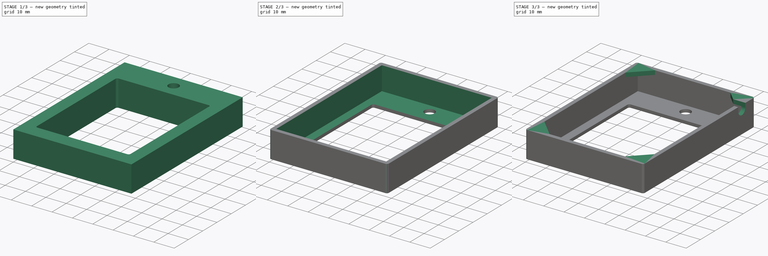
[diagram: build sequence overview — one tinted view per stage of 3, left to right]
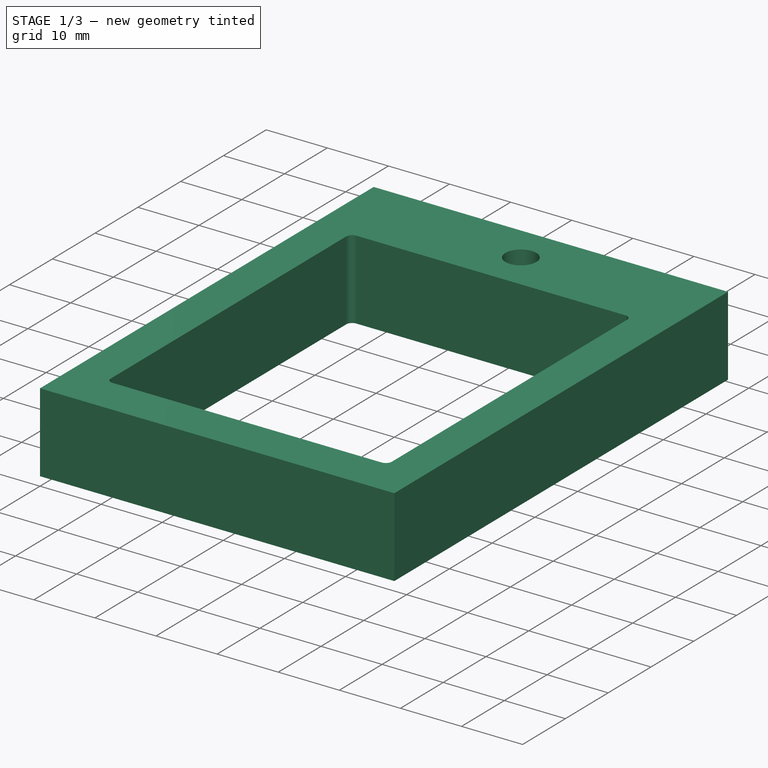
[diagram: stage 1 of 3 — iso view after this stage's code; geometry added in this stage tinted green]
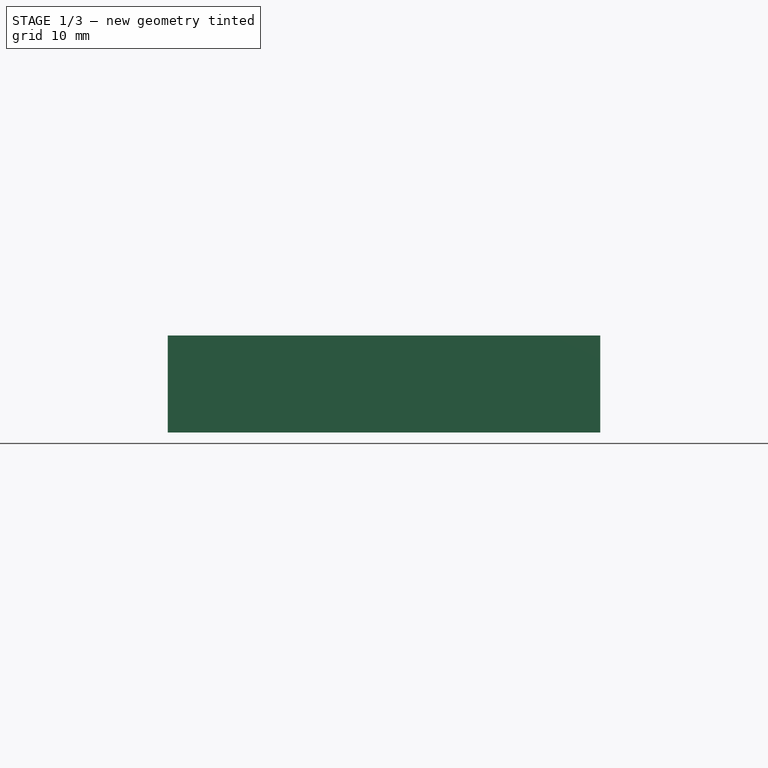
[diagram: stage 1 of 3 — front view after this stage's code; geometry added in this stage tinted green]
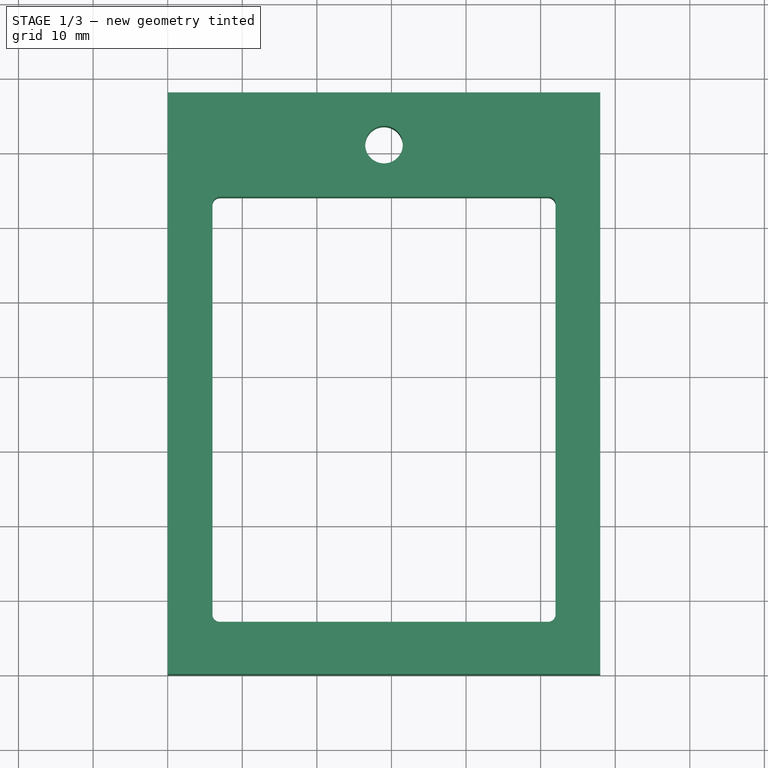
[diagram: stage 1 of 3 — top view after this stage's code; geometry added in this stage tinted green]
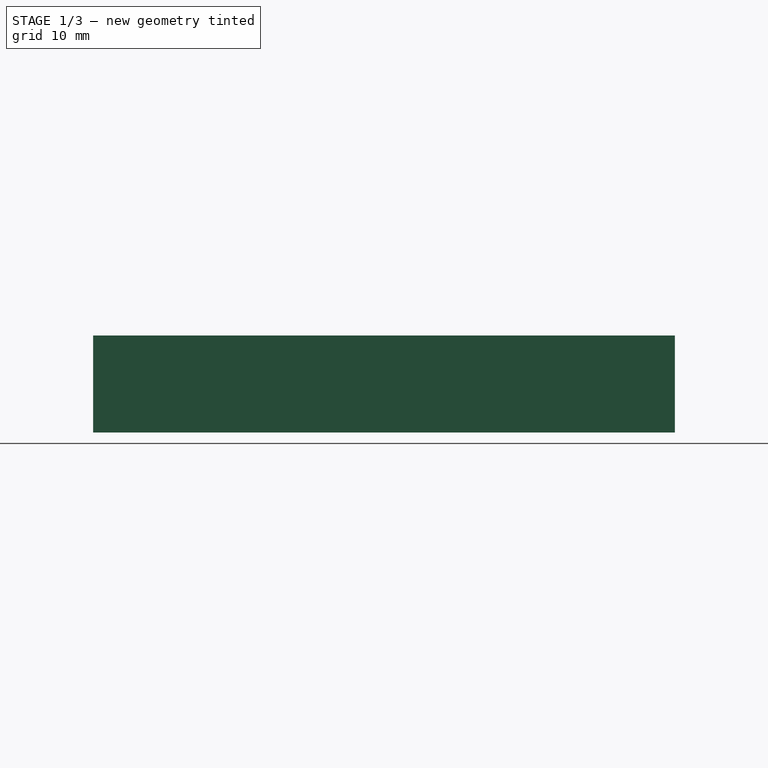
[diagram: stage 1 of 3 — right view after this stage's code; geometry added in this stage tinted green]
FCSTD DOCUMENT  (FreeCAD 0.18R16146 (Git))
Label: keypad
License: All rights reserved
LicenseURL: http://en.wikipedia.org/wiki/All_rights_reserved
objects: Sketcher::SketchObject×3, PartDesign::Pad×2, PartDesign::Fillet×2, PartDesign::Pocket×2, PartDesign::Body×1
note: 14 computed .brp shape members not serialized (recipe doc carries the construction recipe); baked Part::Feature solids carry a one-line shape summary decoded from their .brp

FEATURE [Sketcher::SketchObject] Sketch
  MapMode = 5
  Support = -> [XY_Plane]
  sketch-geometry (15):
    g0: LineSegment StartX=0 StartY=78 StartZ=0 EndX=58 EndY=78 EndZ=0
    g1: LineSegment StartX=58 StartY=78 StartZ=0 EndX=58 EndY=0 EndZ=0
    g2: LineSegment StartX=58 StartY=0 StartZ=0 EndX=0 EndY=0 EndZ=0
    g3: LineSegment StartX=0 StartY=0 StartZ=0 EndX=0 EndY=78 EndZ=0
    g4: LineSegment StartX=6 StartY=64 StartZ=0 EndX=6 EndY=7 EndZ=0
    g5: LineSegment StartX=6 StartY=7 StartZ=0 EndX=52 EndY=7 EndZ=0
    g6: LineSegment StartX=52 StartY=7 StartZ=0 EndX=52 EndY=64 EndZ=0
    g7: LineSegment StartX=52 StartY=64 StartZ=0 EndX=6 EndY=64 EndZ=0
    g8: LineSegment [constr] StartX=29 StartY=78 StartZ=0 EndX=29 EndY=0 EndZ=0
    g9: LineSegment [constr] StartX=29 StartY=78 StartZ=0 EndX=0 EndY=78 EndZ=0
    g10: LineSegment [constr] StartX=0 StartY=71 StartZ=0 EndX=29 EndY=71 EndZ=0
    g11: LineSegment [constr] StartX=29 StartY=71 StartZ=0 EndX=58 EndY=71 EndZ=0
    g12: LineSegment [constr] StartX=6 StartY=20 StartZ=0 EndX=29 EndY=20 EndZ=0
    g13: LineSegment [constr] StartX=29 StartY=20 StartZ=0 EndX=52 EndY=20 EndZ=0
    g14: Circle CenterX=29 CenterY=71 CenterZ=0 NormalX=0 NormalY=0 NormalZ=1 AngleXU=0 Radius=2.525
  constraints (45):
    c: Coincident(g0,g1)
    c: Coincident(g1,g2)
    c: Coincident(g2,g3)
    c: Coincident(g3,g0)
    c: Horizontal(g0)
    c: Horizontal(g2)
    c: Vertical(g1)
    c: Vertical(g3)
    c: Coincident(g-1,g2)
    c: Distance(g0) = 58
    c: Distance(g1) = 78
    c: Vertical(g4)
    c: Coincident(g4,g5)
    c: Horizontal(g5)
    c: Coincident(g5,g6)
    c: Coincident(g6,g7)
    c: Coincident(g7,g4)
    c: Parallel(g4,g6)
    c: Parallel(g7,g5)
    c: Distance(g7) = 46
    c: Distance(g6) = 57
    c: PointOnObject(g8,g0)
    c: PointOnObject(g8,g2)
    c: Vertical(g8)
    c: Coincident(g9,g8)
    c: Coincident(g9,g0)
    c: PointOnObject(g10,g3)
    c: Horizontal(g10)
    c: Coincident(g11,g10)
    c: PointOnObject(g11,g1)
    c: Horizontal(g11)
    c: Equal(g11,g10)
    c: PointOnObject(g10,g8)
    c: DistanceY(g1,g5) = 7
    c: PointOnObject(g12,g4)
    c: PointOnObject(g12,g8)
    c: Horizontal(g12)
    c: PointOnObject(g13,g6)
    c: Horizontal(g13)
    c: Equal(g12,g13)
    c: Coincident(g12,g13)
    c: Distance(g10,g8) = 7
    c: Distance(g12,g8) = 20
    c: Coincident(g14,g10)
    c: Diameter(g14) = 5.05
FEATURE [PartDesign::Pad] Pad
  Length = 13
  Length2 = 100
  Profile = -> Sketch
  Refine = true
  Type = 0
FEATURE [Sketcher::SketchObject] Sketch001
  ExternalGeometry = -> [Pad]
  MapMode = 5
  Placement = pos=(0,0,13) rot=(0,0,1;0rad)
  Support = -> [Pad]
  sketch-geometry (12):
    g0: LineSegment StartX=2 StartY=76 StartZ=0 EndX=56 EndY=76 EndZ=0
    g1: LineSegment StartX=56 StartY=76 StartZ=0 EndX=56 EndY=2 EndZ=0
    g2: LineSegment StartX=56 StartY=2 StartZ=0 EndX=2 EndY=2 EndZ=0
    g3: LineSegment StartX=2 StartY=2 StartZ=0 EndX=2 EndY=76 EndZ=0
    g4: LineSegment [constr] StartX=0 StartY=39 StartZ=0 EndX=29 EndY=39 EndZ=0
    g5: LineSegment [constr] StartX=29 StartY=39 StartZ=0 EndX=58 EndY=39 EndZ=0
    g6: LineSegment [constr] StartX=29 StartY=78 StartZ=0 EndX=29 EndY=39 EndZ=0
    g7: LineSegment [constr] StartX=29 StartY=39 StartZ=0 EndX=29 EndY=0 EndZ=0
    g8: LineSegment [constr] StartX=2 StartY=76 StartZ=0 EndX=0 EndY=78 EndZ=0
    g9: LineSegment [constr] StartX=56 StartY=76 StartZ=0 EndX=58 EndY=78 EndZ=0
    g10: LineSegment [constr] StartX=56 StartY=2 StartZ=0 EndX=58 EndY=2e-16 EndZ=0
    g11: LineSegment [constr] StartX=0 StartY=0 StartZ=0 EndX=2 EndY=2 EndZ=0
  constraints (33):
    c: Coincident(g0,g1)
    c: Coincident(g1,g2)
    c: Coincident(g2,g3)
    c: Coincident(g3,g0)
    c: Horizontal(g0)
    c: Horizontal(g2)
    c: Vertical(g1)
    c: Horizontal(g4)
    c: Coincident(g4,g5)
    c: PointOnObject(g5,g-4)
    c: Horizontal(g5)
    c: Coincident(g6,g4)
    c: Coincident(g6,g7)
    c: PointOnObject(g7,g-1)
    c: Vertical(g7)
    c: Equal(g4,g5)
    c: Equal(g6,g7)
    c: Vertical(g6)
    c: PointOnObject(g6,g-3)
    c: PointOnObject(g4,g-2)
    c: Coincident(g8,g-3)
    c: Coincident(g9,g0)
    c: Coincident(g9,g-4)
    c: Coincident(g10,g1)
    c: Coincident(g11,g-1)
    c: Coincident(g11,g2)
    c: Equal(g8,g9)
    c: Equal(g9,g10)
    c: Equal(g10,g11)
    c: Coincident(g-4,g10)
    c: Coincident(g8,g0)
    c: DistanceX(g-1,g0) = 2
    c: DistanceY(g0,g9) = 2
FEATURE [PartDesign::Fillet] Fillet
  Base = -> Pad [Edge13,Edge14,Edge17,Edge20]
  BaseFeature = -> Pad
  Radius = 1
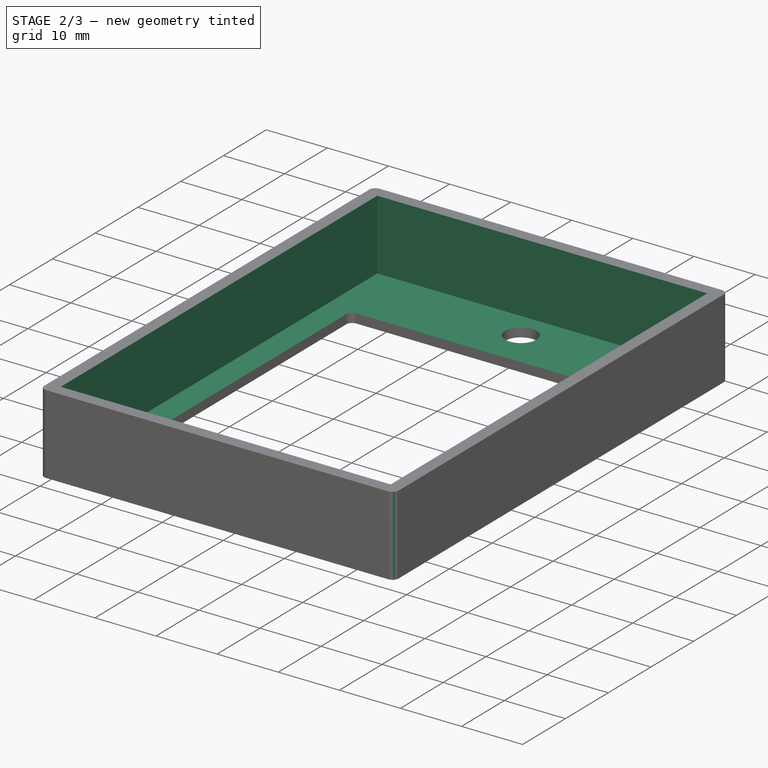
[diagram: stage 2 of 3 — iso view after this stage's code; geometry added in this stage tinted green]
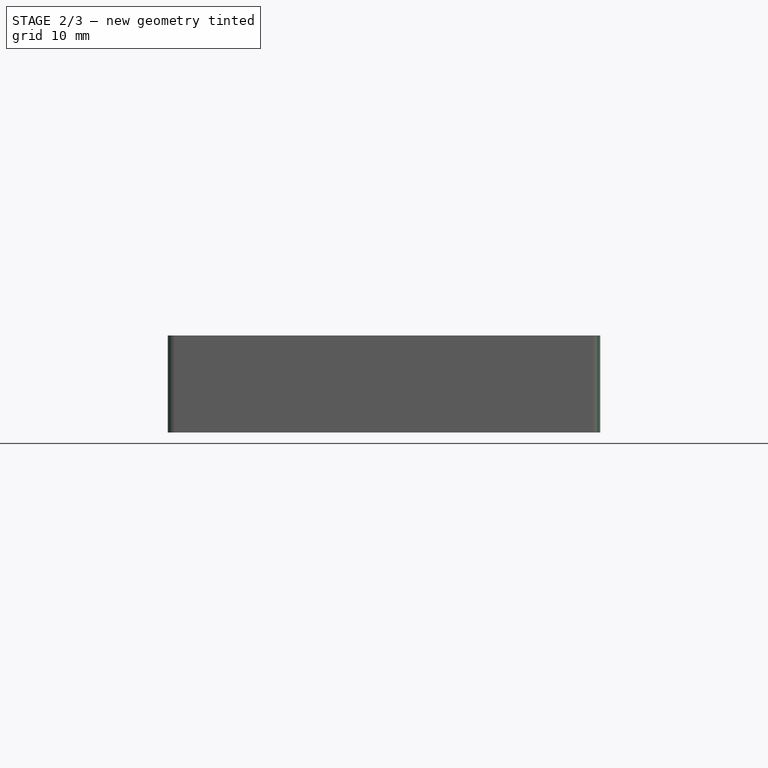
[diagram: stage 2 of 3 — front view after this stage's code; geometry added in this stage tinted green]
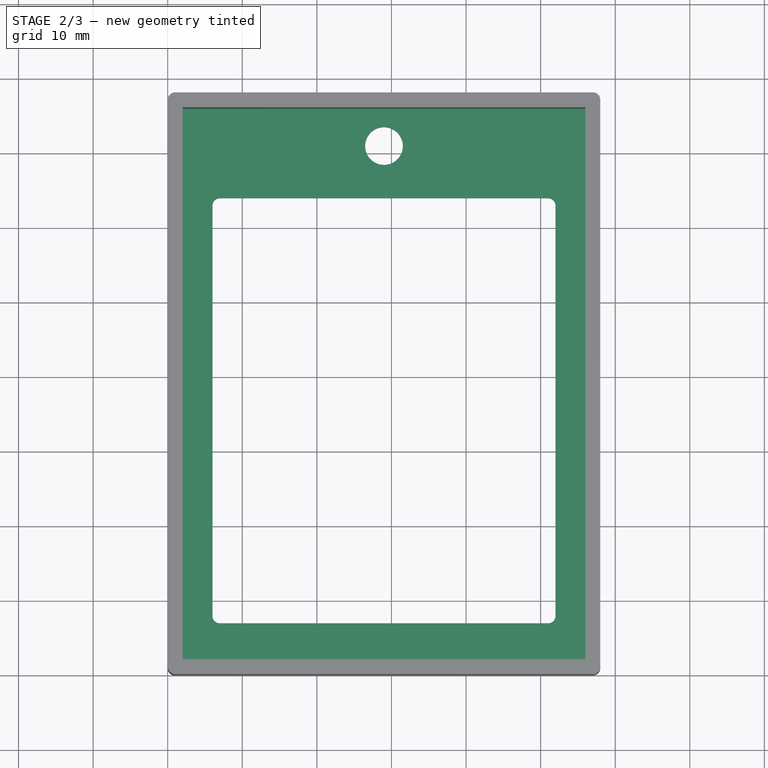
[diagram: stage 2 of 3 — top view after this stage's code; geometry added in this stage tinted green]
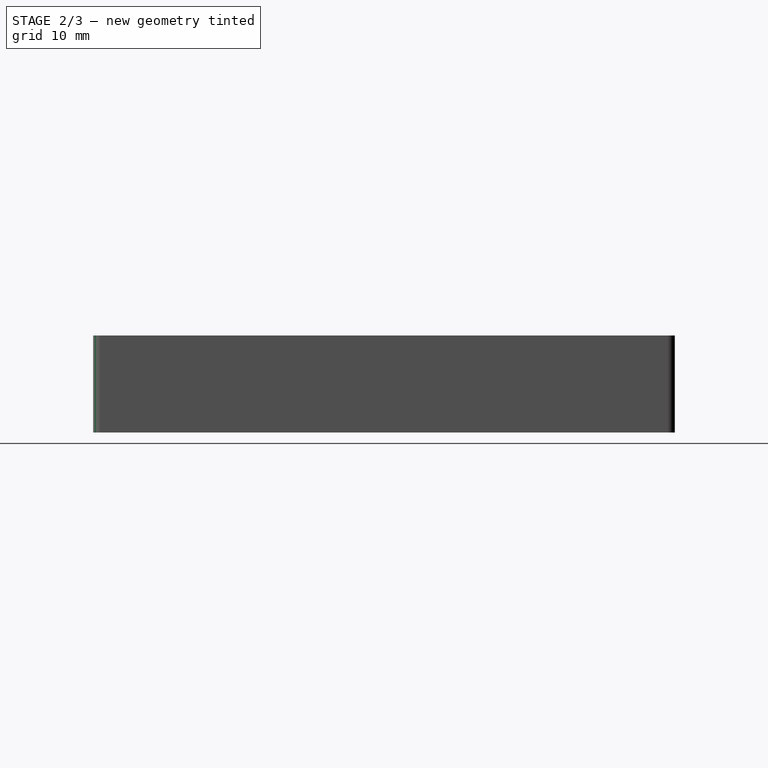
[diagram: stage 2 of 3 — right view after this stage's code; geometry added in this stage tinted green]
FEATURE [PartDesign::Pocket] Pocket
  BaseFeature = -> Fillet
  Length = 11.5
  Length2 = 100
  Profile = -> Sketch001
  Refine = true
  Type = 0
FEATURE [PartDesign::Fillet] Fillet001
  Base = -> Pocket [Edge38,Edge36,Edge35,Edge40]
  BaseFeature = -> Pocket
  Radius = 1
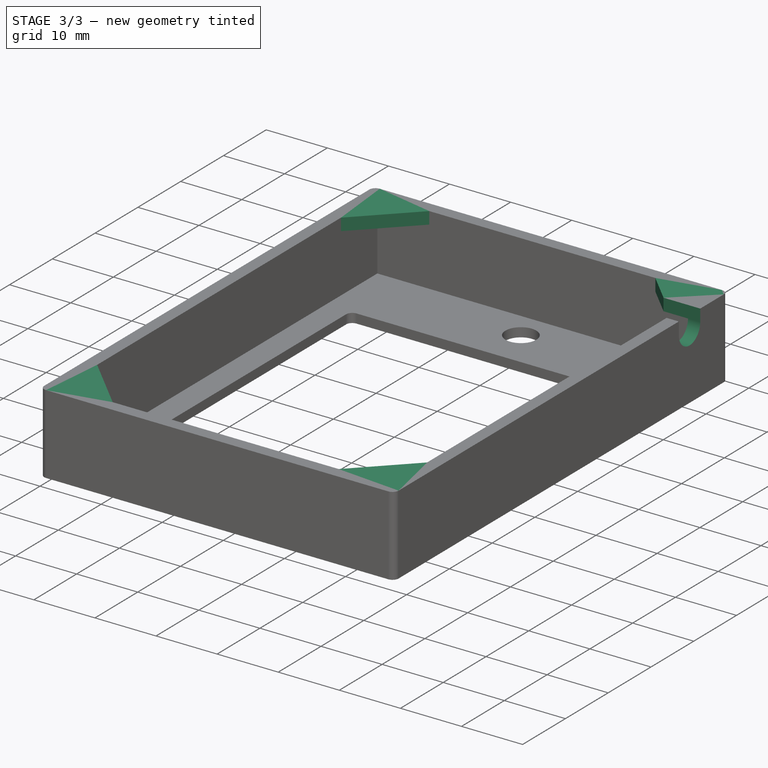
[diagram: stage 3 of 3 — iso view after this stage's code; geometry added in this stage tinted green]
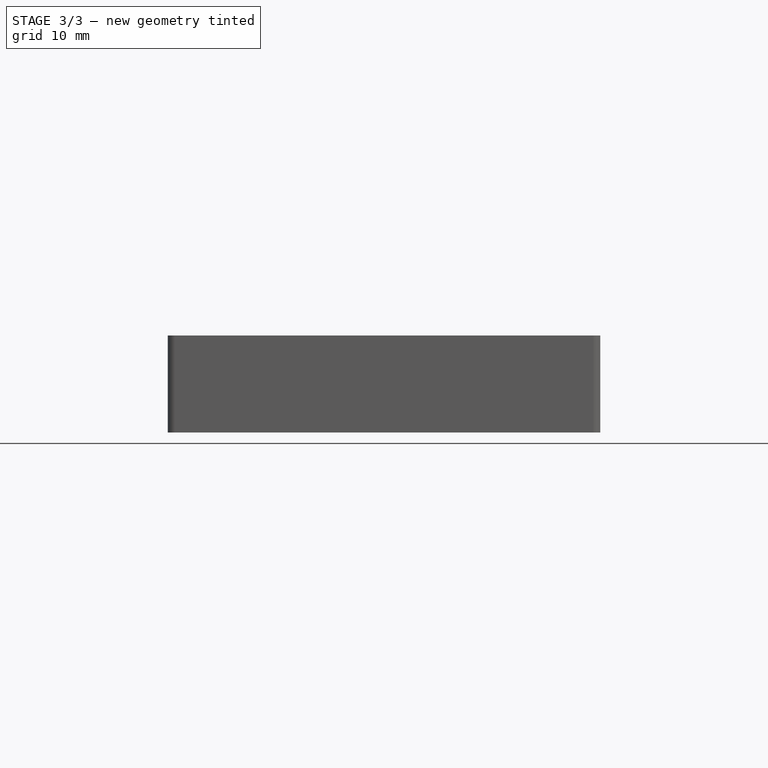
[diagram: stage 3 of 3 — front view after this stage's code; geometry added in this stage tinted green]
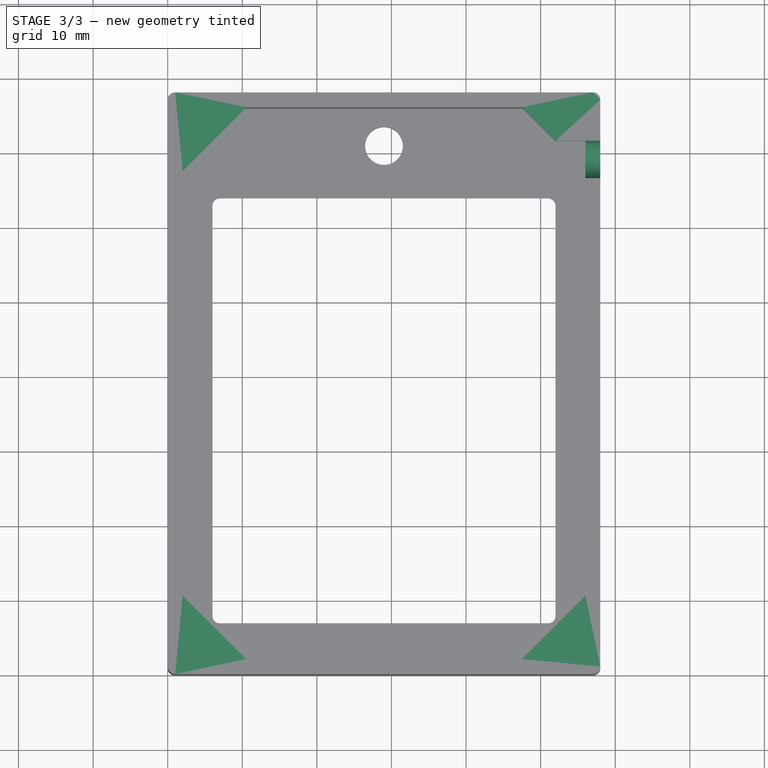
[diagram: stage 3 of 3 — top view after this stage's code; geometry added in this stage tinted green]
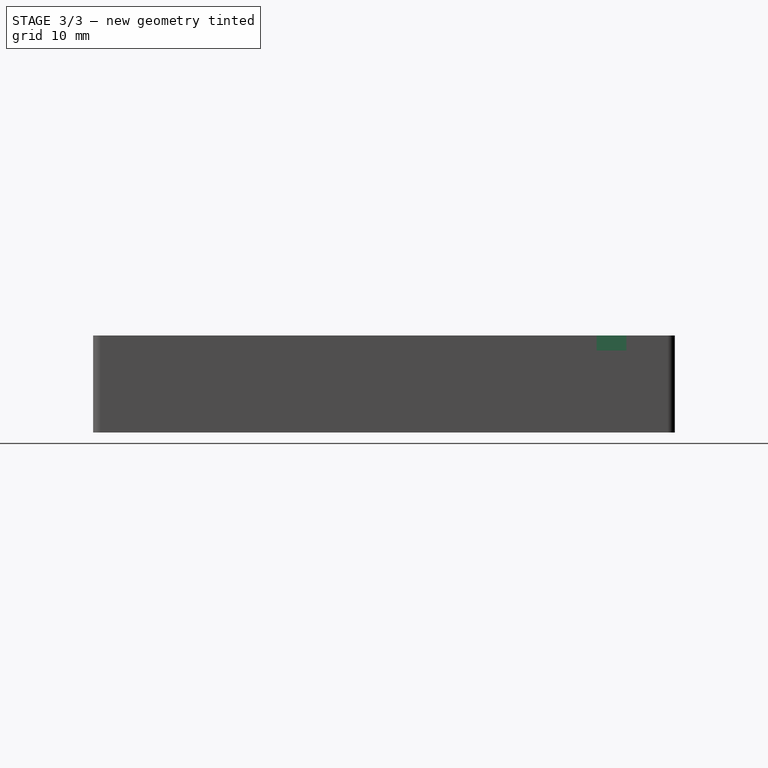
[diagram: stage 3 of 3 — right view after this stage's code; geometry added in this stage tinted green]
FEATURE [Sketcher::SketchObject] Sketch002
  ExternalGeometry = -> [Fillet001]
  MapMode = 5
  Placement = pos=(0,0,13) rot=(0,0,1;0rad)
  Support = -> [Fillet001]
  sketch-geometry (12):
    g0: LineSegment StartX=2 StartY=76 StartZ=0 EndX=10.5 EndY=76 EndZ=0
    g1: LineSegment StartX=10.5 StartY=76 StartZ=0 EndX=2 EndY=67.5 EndZ=0
    g2: LineSegment StartX=2 StartY=67.5 StartZ=0 EndX=2 EndY=76 EndZ=0
    g3: LineSegment StartX=47.5 StartY=76 StartZ=0 EndX=56 EndY=76 EndZ=0
    g4: LineSegment StartX=56 StartY=76 StartZ=0 EndX=56 EndY=67.5 EndZ=0
    g5: LineSegment StartX=56 StartY=67.5 StartZ=0 EndX=47.5 EndY=76 EndZ=0
    g6: LineSegment StartX=2 StartY=10.5 StartZ=0 EndX=2 EndY=2 EndZ=0
    g7: LineSegment StartX=2 StartY=2 StartZ=0 EndX=10.5 EndY=2 EndZ=0
    g8: LineSegment StartX=10.5 StartY=2 StartZ=0 EndX=2 EndY=10.5 EndZ=0
    g9: LineSegment StartX=47.5 StartY=2 StartZ=0 EndX=56 EndY=10.5 EndZ=0
    g10: LineSegment StartX=56 StartY=10.5 StartZ=0 EndX=56 EndY=2 EndZ=0
    g11: LineSegment StartX=56 StartY=2 StartZ=0 EndX=47.5 EndY=2 EndZ=0
  constraints (32):
    c: Coincident(g-4,g0)
    c: PointOnObject(g0,g-3)
    c: Coincident(g0,g1)
    c: PointOnObject(g1,g-4)
    c: Coincident(g1,g2)
    c: Coincident(g2,g0)
    c: PointOnObject(g3,g-3)
    c: Coincident(g3,g-3)
    c: Coincident(g3,g4)
    c: Vertical(g4)
    c: Coincident(g4,g5)
    c: Coincident(g5,g3)
    c: PointOnObject(g6,g-4)
    c: Coincident(g6,g-5)
    c: Coincident(g6,g7)
    c: PointOnObject(g7,g-5)
    c: Coincident(g7,g8)
    c: Coincident(g8,g6)
    c: Coincident(g9,g10)
    c: Coincident(g10,g-5)
    c: Vertical(g10)
    c: Coincident(g10,g11)
    c: Coincident(g11,g9)
    c: PointOnObject(g9,g-5)
    c: Equal(g0,g2)
    c: Equal(g2,g6)
    c: Equal(g6,g7)
    c: Equal(g7,g11)
    c: Equal(g11,g10)
    c: Equal(g10,g4)
    c: Equal(g4,g3)
    c: Distance(g10,g9) = 8.5
FEATURE [PartDesign::Pad] Pad001
  BaseFeature = -> Fillet001
  Length = 2
  Length2 = 100
  Profile = -> Sketch002
  Refine = true
  Reversed = true
  Type = 0
FEATURE [PartDesign::Pocket] Pocket002
  BaseFeature = -> Pad001
  Length = 9
  Length2 = 100
  Refine = true
  Type = 0
FEATURE [PartDesign::Body] Body
  Group = -> [Sketch,Pad,Sketch001,Fillet,Pocket,Fillet001,Sketch002,Pad001,Pocket002]
  Origin = -> Origin
  Tip = -> Pocket002
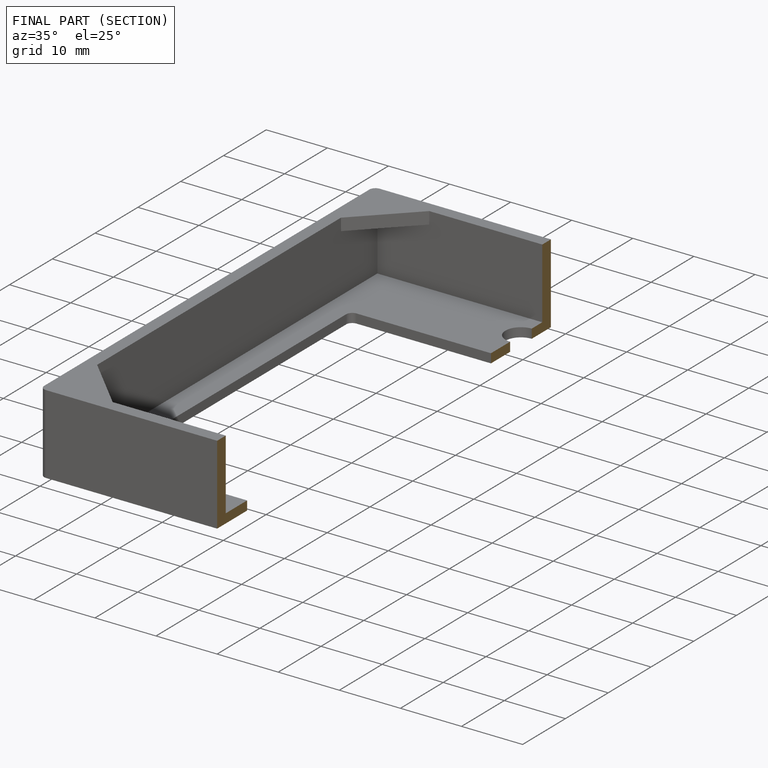
[diagram: finished part — half-section view (interior)]
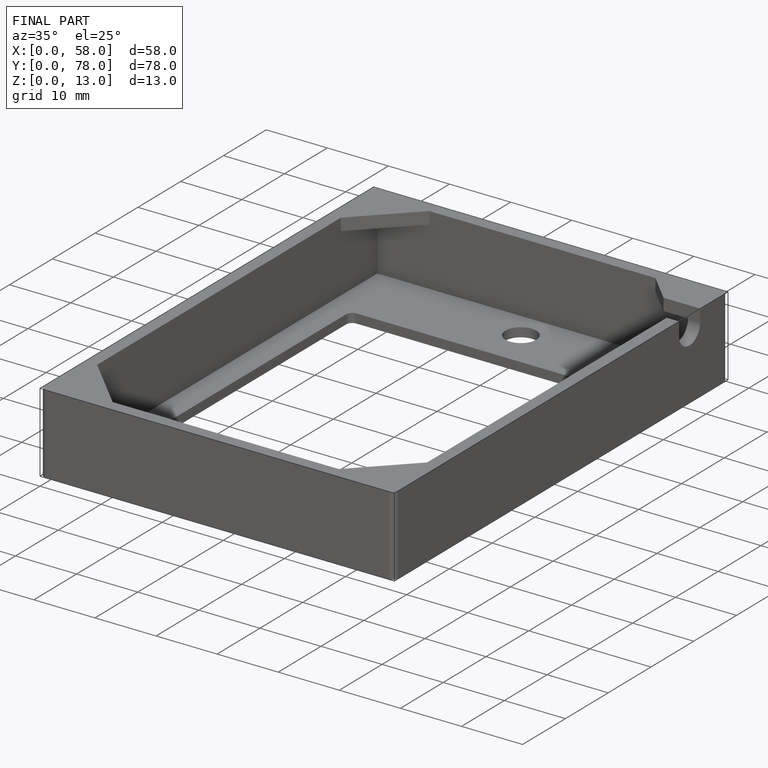
[diagram: finished part — iso view with bounding-box wireframe]
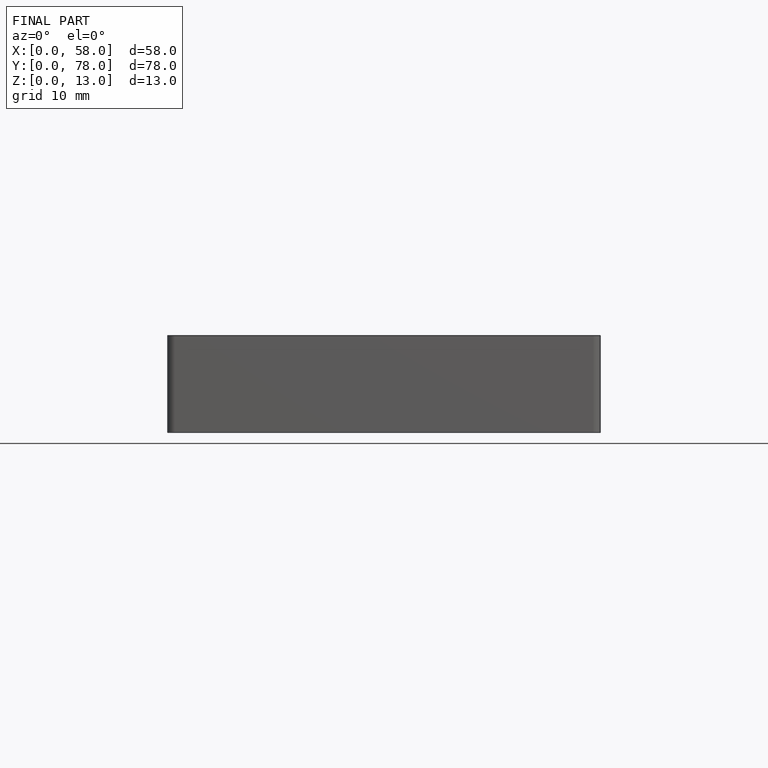
[diagram: finished part — front view with bounding-box wireframe]
